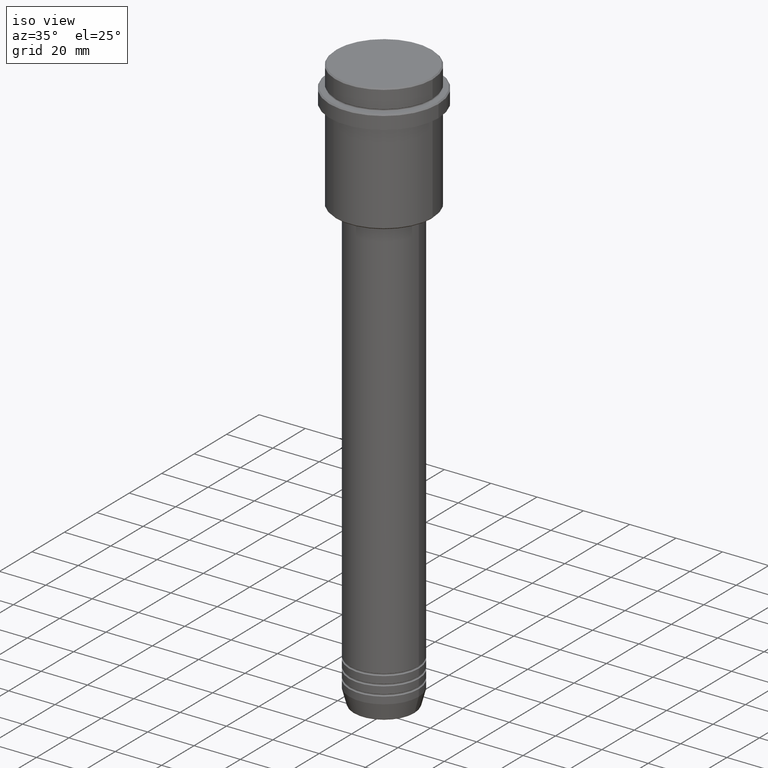
[diagram: clean part render]
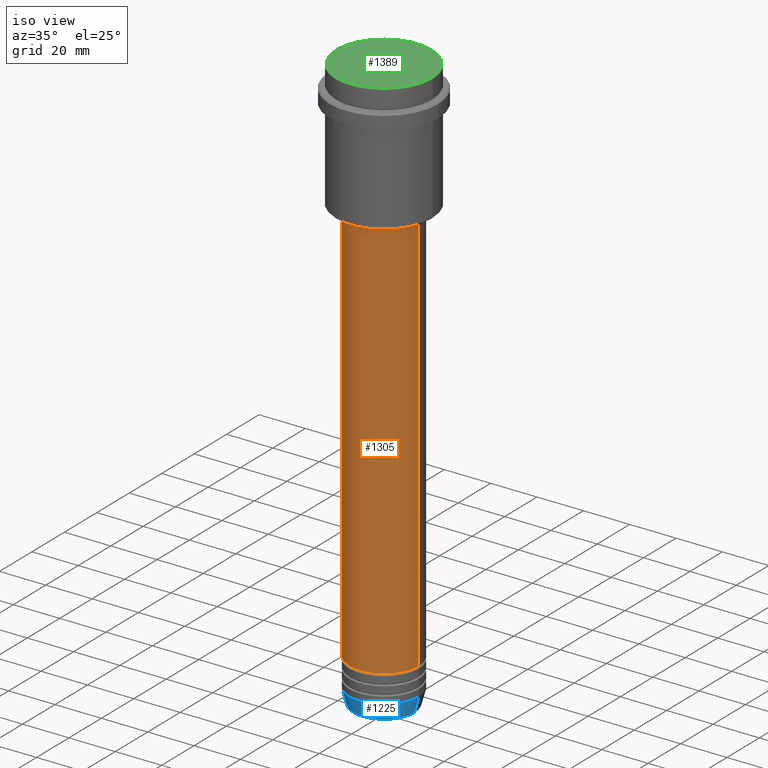
[diagram: same view with three faces highlighted in distinct colors, each labeled with its STEP entity id]
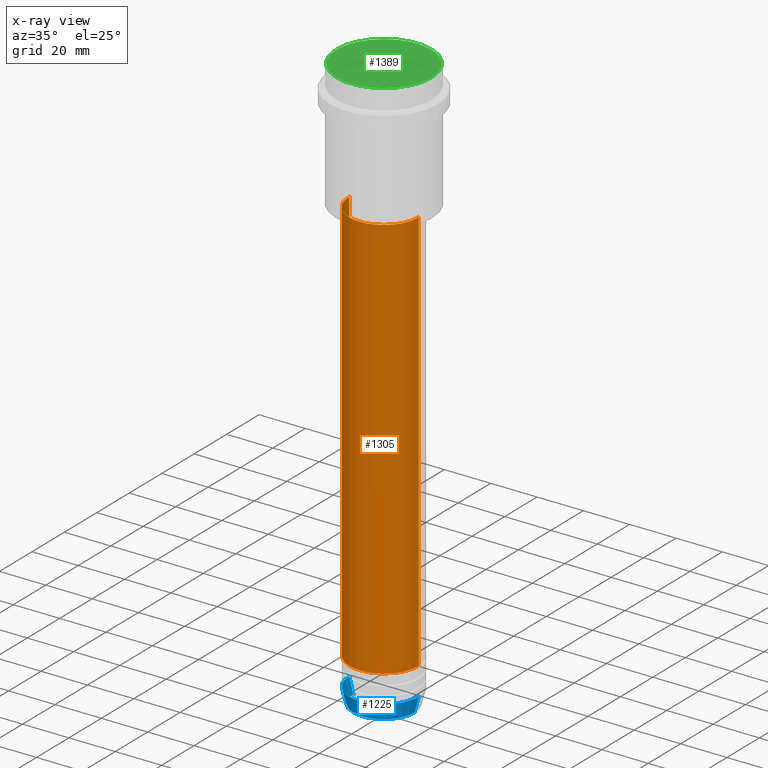
[diagram: x-ray of the same camera — body ghosted, the three highlighted faces saturated]
A machine part, iso view with three faces highlighted in distinct colors.
The next image is the same camera in x-ray (body ghosted, the three faces saturated) — at least one of them is partly hidden behind the body in this view.
Their STEP definitions:

[orange] entity #1305 — the highlighted cylindrical surface (partial cylindrical patch) has radius 15 mm, axis along (-0, -0, 1).
#20 = DIRECTION ( 'NONE',  ( 1.000000000000000000, 0.000000000000000000, 0.000000000000000000 ) ) ;
#38 = EDGE_CURVE ( 'NONE', #279, #1163, #613, .T. ) ;
#40 = CARTESIAN_POINT ( 'NONE',  ( 15.00000000000000000, 0.000000000000000000, -56.00000000000000000 ) ) ;
#79 = EDGE_CURVE ( 'NONE', #288, #279, #644, .T. ) ;
#84 = DIRECTION ( 'NONE',  ( -0.000000000000000000, -0.000000000000000000, 1.000000000000000000 ) ) ;
#178 = ORIENTED_EDGE ( 'NONE', *, *, #889, .F. ) ;
#227 = EDGE_CURVE ( 'NONE', #657, #1163, #1370, .T. ) ;
#279 = VERTEX_POINT ( 'NONE', #1115 ) ;
#288 = VERTEX_POINT ( 'NONE', #1349 ) ;
#300 = ORIENTED_EDGE ( 'NONE', *, *, #227, .F. ) ;
#406 = DIRECTION ( 'NONE',  ( -0.000000000000000000, -0.000000000000000000, 1.000000000000000000 ) ) ;
#407 = DIRECTION ( 'NONE',  ( 1.000000000000000000, 0.000000000000000000, 0.000000000000000000 ) ) ;
#427 = CARTESIAN_POINT ( 'NONE',  ( 0.000000000000000000, 0.000000000000000000, -230.9999999999998863 ) ) ;
#431 = CARTESIAN_POINT ( 'NONE',  ( 0.000000000000000000, 0.000000000000000000, -56.00000000000000000 ) ) ;
#476 = ORIENTED_EDGE ( 'NONE', *, *, #38, .T. ) ;
#509 = VECTOR ( 'NONE', #406, 1000.000000000000000 ) ;
#608 = FACE_OUTER_BOUND ( 'NONE', #679, .T. ) ;
#613 = LINE ( 'NONE', #1382, #509 ) ;
#616 = LINE ( 'NONE', #719, #738 ) ;
#637 = DIRECTION ( 'NONE',  ( 1.000000000000000000, 0.000000000000000000, 0.000000000000000000 ) ) ;
#644 = CIRCLE ( 'NONE', #709, 15.00000000000000000 ) ;
#657 = VERTEX_POINT ( 'NONE', #658 ) ;
#658 = CARTESIAN_POINT ( 'NONE',  ( -15.00000000000000000, 1.836970198721029589E-15, -56.00000000000000000 ) ) ;
#679 = EDGE_LOOP ( 'NONE', ( #178, #1300, #476, #300 ) ) ;
#709 = AXIS2_PLACEMENT_3D ( 'NONE', #427, #1181, #637 ) ;
#719 = CARTESIAN_POINT ( 'NONE',  ( -15.00000000000000000, 1.836970198721029589E-15, 0.000000000000000000 ) ) ;
#738 = VECTOR ( 'NONE', #1057, 1000.000000000000000 ) ;
#790 = AXIS2_PLACEMENT_3D ( 'NONE', #1049, #84, #407 ) ;
#827 = AXIS2_PLACEMENT_3D ( 'NONE', #431, #867, #20 ) ;
#867 = DIRECTION ( 'NONE',  ( -0.000000000000000000, -0.000000000000000000, 1.000000000000000000 ) ) ;
#889 = EDGE_CURVE ( 'NONE', #288, #657, #616, .T. ) ;
#1049 = CARTESIAN_POINT ( 'NONE',  ( 0.000000000000000000, 0.000000000000000000, 0.000000000000000000 ) ) ;
#1057 = DIRECTION ( 'NONE',  ( -0.000000000000000000, -0.000000000000000000, 1.000000000000000000 ) ) ;
#1115 = CARTESIAN_POINT ( 'NONE',  ( 15.00000000000000000, 0.000000000000000000, -230.9999999999998863 ) ) ;
#1163 = VERTEX_POINT ( 'NONE', #40 ) ;
#1181 = DIRECTION ( 'NONE',  ( -0.000000000000000000, -0.000000000000000000, 1.000000000000000000 ) ) ;
#1300 = ORIENTED_EDGE ( 'NONE', *, *, #79, .T. ) ;
#1305 = ADVANCED_FACE ( 'NONE', ( #608 ), #1383, .T. ) ;
#1349 = CARTESIAN_POINT ( 'NONE',  ( -15.00000000000000000, 1.836970198721029589E-15, -230.9999999999998863 ) ) ;
#1370 = CIRCLE ( 'NONE', #827, 15.00000000000000000 ) ;
#1382 = CARTESIAN_POINT ( 'NONE',  ( 15.00000000000000000, 0.000000000000000000, 0.000000000000000000 ) ) ;
#1383 = CYLINDRICAL_SURFACE ( 'NONE', #790, 15.00000000000000000 ) ;

[blue] entity #1225 — the highlighted conical surface has half-angle 15 deg.
#41 = VERTEX_POINT ( 'NONE', #191 ) ;
#49 = DIRECTION ( 'NONE',  ( -0.000000000000000000, -0.000000000000000000, 1.000000000000000000 ) ) ;
#53 = CONICAL_SURFACE ( 'NONE', #855, 15.00000000000000000, 0.2617993877991500740 ) ;
#170 = VECTOR ( 'NONE', #675, 1000.000000000000000 ) ;
#191 = CARTESIAN_POINT ( 'NONE',  ( -15.00000000000000000, 1.836970198721029589E-15, -243.0000000000000000 ) ) ;
#197 = CIRCLE ( 'NONE', #1014, 13.22365507213719482 ) ;
#201 = EDGE_LOOP ( 'NONE', ( #498, #1356, #586, #686 ) ) ;
#224 = CARTESIAN_POINT ( 'NONE',  ( 15.00000000000000000, 0.000000000000000000, -243.0000000000000000 ) ) ;
#283 = VECTOR ( 'NONE', #604, 1000.000000000000000 ) ;
#312 = EDGE_CURVE ( 'NONE', #41, #1015, #662, .T. ) ;
#344 = CARTESIAN_POINT ( 'NONE',  ( 13.22365507213719482, 0.000000000000000000, -249.6294095225512422 ) ) ;
#380 = VERTEX_POINT ( 'NONE', #410 ) ;
#410 = CARTESIAN_POINT ( 'NONE',  ( -13.22365507213719660, 1.728200442216588780E-15, -249.6294095225512422 ) ) ;
#414 = CARTESIAN_POINT ( 'NONE',  ( 15.00000000000000000, 0.000000000000000000, -243.0000000000000000 ) ) ;
#450 = FACE_OUTER_BOUND ( 'NONE', #201, .T. ) ;
#498 = ORIENTED_EDGE ( 'NONE', *, *, #1153, .F. ) ;
#536 = VERTEX_POINT ( 'NONE', #344 ) ;
#569 = LINE ( 'NONE', #702, #170 ) ;
#586 = ORIENTED_EDGE ( 'NONE', *, *, #871, .T. ) ;
#604 = DIRECTION ( 'NONE',  ( 0.2588190451025213501, 0.000000000000000000, 0.9659258262890680902 ) ) ;
#662 = CIRCLE ( 'NONE', #851, 15.00000000000000000 ) ;
#666 = DIRECTION ( 'NONE',  ( -0.000000000000000000, -0.000000000000000000, 1.000000000000000000 ) ) ;
#675 = DIRECTION ( 'NONE',  ( -0.2588190451025213501, 3.169619151431772337E-17, 0.9659258262890680902 ) ) ;
#686 = ORIENTED_EDGE ( 'NONE', *, *, #312, .F. ) ;
#702 = CARTESIAN_POINT ( 'NONE',  ( -15.00000000000000000, 1.836970198721029589E-15, -243.0000000000000000 ) ) ;
#851 = AXIS2_PLACEMENT_3D ( 'NONE', #1006, #49, #909 ) ;
#855 = AXIS2_PLACEMENT_3D ( 'NONE', #900, #1133, #1332 ) ;
#871 = EDGE_CURVE ( 'NONE', #536, #1015, #1255, .T. ) ;
#900 = CARTESIAN_POINT ( 'NONE',  ( 0.000000000000000000, 0.000000000000000000, -243.0000000000000000 ) ) ;
#909 = DIRECTION ( 'NONE',  ( 1.000000000000000000, 0.000000000000000000, 0.000000000000000000 ) ) ;
#962 = DIRECTION ( 'NONE',  ( 1.000000000000000000, 0.000000000000000000, 0.000000000000000000 ) ) ;
#1006 = CARTESIAN_POINT ( 'NONE',  ( 0.000000000000000000, 0.000000000000000000, -243.0000000000000000 ) ) ;
#1014 = AXIS2_PLACEMENT_3D ( 'NONE', #1092, #666, #962 ) ;
#1015 = VERTEX_POINT ( 'NONE', #224 ) ;
#1026 = EDGE_CURVE ( 'NONE', #380, #536, #197, .T. ) ;
#1092 = CARTESIAN_POINT ( 'NONE',  ( 0.000000000000000000, 0.000000000000000000, -249.6294095225512422 ) ) ;
#1133 = DIRECTION ( 'NONE',  ( -0.000000000000000000, -0.000000000000000000, 1.000000000000000000 ) ) ;
#1153 = EDGE_CURVE ( 'NONE', #380, #41, #569, .T. ) ;
#1225 = ADVANCED_FACE ( 'NONE', ( #450 ), #53, .T. ) ;
#1255 = LINE ( 'NONE', #414, #283 ) ;
#1332 = DIRECTION ( 'NONE',  ( 1.000000000000000000, 0.000000000000000000, 0.000000000000000000 ) ) ;
#1356 = ORIENTED_EDGE ( 'NONE', *, *, #1026, .T. ) ;

[green] entity #1389 — the highlighted planar face has unit normal (0, -0, 1).
#244 = AXIS2_PLACEMENT_3D ( 'NONE', #1400, #755, #425 ) ;
#345 = ORIENTED_EDGE ( 'NONE', *, *, #862, .T. ) ;
#398 = CIRCLE ( 'NONE', #244, 20.50000000000001776 ) ;
#425 = DIRECTION ( 'NONE',  ( 1.000000000000000000, 0.000000000000000000, 0.000000000000000000 ) ) ;
#436 = DIRECTION ( 'NONE',  ( 0.000000000000000000, -0.000000000000000000, 1.000000000000000000 ) ) ;
#439 = VERTEX_POINT ( 'NONE', #720 ) ;
#499 = CARTESIAN_POINT ( 'NONE',  ( 0.000000000000000000, 0.000000000000000000, 0.000000000000000000 ) ) ;
#547 = DIRECTION ( 'NONE',  ( 1.000000000000000000, 0.000000000000000000, 0.000000000000000000 ) ) ;
#620 = CIRCLE ( 'NONE', #1102, 20.50000000000001776 ) ;
#720 = CARTESIAN_POINT ( 'NONE',  ( 20.50000000000001776, 2.541142108230758663E-15, 0.000000000000000000 ) ) ;
#755 = DIRECTION ( 'NONE',  ( -0.000000000000000000, -0.000000000000000000, 1.000000000000000000 ) ) ;
#837 = CARTESIAN_POINT ( 'NONE',  ( 0.000000000000000000, 0.000000000000000000, 0.000000000000000000 ) ) ;
#862 = EDGE_CURVE ( 'NONE', #1239, #439, #620, .T. ) ;
#903 = AXIS2_PLACEMENT_3D ( 'NONE', #499, #436, #547 ) ;
#1030 = EDGE_CURVE ( 'NONE', #439, #1239, #398, .T. ) ;
#1043 = PLANE ( 'NONE',  #903 ) ;
#1102 = AXIS2_PLACEMENT_3D ( 'NONE', #837, #1392, #1263 ) ;
#1148 = FACE_OUTER_BOUND ( 'NONE', #1205, .T. ) ;
#1188 = ORIENTED_EDGE ( 'NONE', *, *, #1030, .T. ) ;
#1205 = EDGE_LOOP ( 'NONE', ( #345, #1188 ) ) ;
#1239 = VERTEX_POINT ( 'NONE', #1253 ) ;
#1253 = CARTESIAN_POINT ( 'NONE',  ( -20.50000000000001776, 0.000000000000000000, 0.000000000000000000 ) ) ;
#1263 = DIRECTION ( 'NONE',  ( 1.000000000000000000, 0.000000000000000000, 0.000000000000000000 ) ) ;
#1389 = ADVANCED_FACE ( 'NONE', ( #1148 ), #1043, .T. ) ;
#1392 = DIRECTION ( 'NONE',  ( -0.000000000000000000, -0.000000000000000000, 1.000000000000000000 ) ) ;
#1400 = CARTESIAN_POINT ( 'NONE',  ( 0.000000000000000000, 0.000000000000000000, 0.000000000000000000 ) ) ;